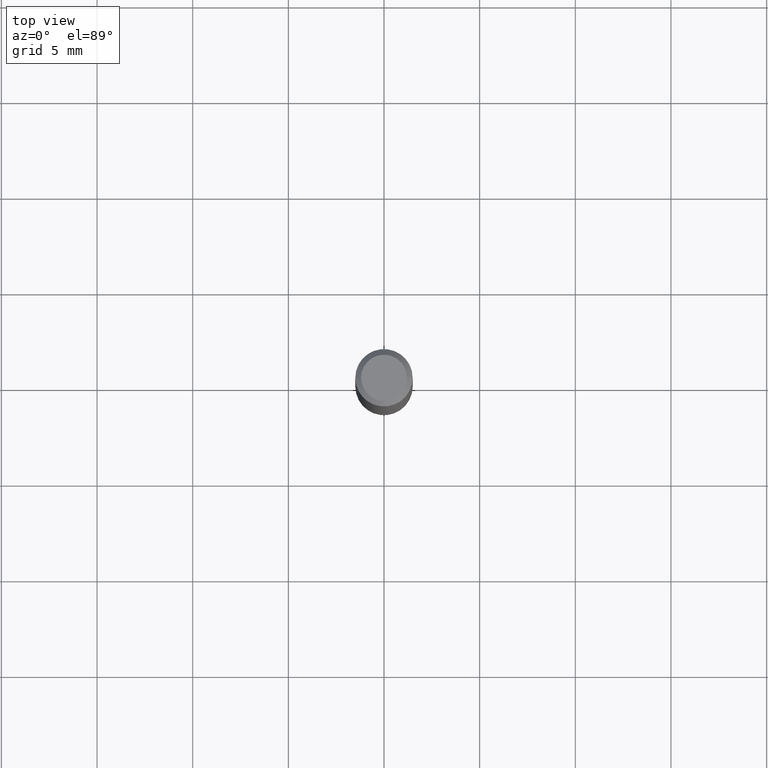
[diagram: clean part render]
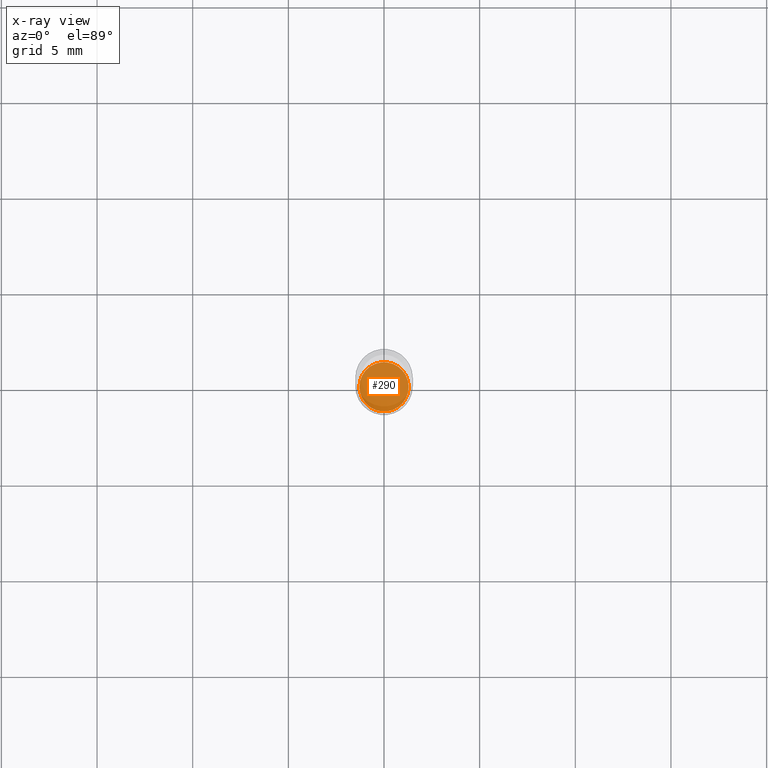
[diagram: x-ray — body ghosted, one internal face saturated and labeled with its STEP entity id]
A machine part, top view, then the same camera in x-ray: the body is ghosted and one INTERNAL B-rep face — a face not visible from any outside direction — is saturated and labeled: STEP entity #290.
In plain terms, the highlighted planar face has unit normal (-0, 0, 1).
Its self-contained STEP definition (entity closure, byte-faithful):
#23 = EDGE_LOOP ( 'NONE', ( #94, #473 ) ) ;
#26 = DIRECTION ( 'NONE',  ( 1.000000000000000000, -6.982962677686263555E-15, 0.000000000000000000 ) ) ;
#42 = VERTEX_POINT ( 'NONE', #298 ) ;
#52 = PLANE ( 'NONE',  #401 ) ;
#69 = CARTESIAN_POINT ( 'NONE',  ( -0.05070000000000000201, -3.458531931159340616E-15, -1.094500000000000028 ) ) ;
#94 = ORIENTED_EDGE ( 'NONE', *, *, #312, .F. ) ;
#117 = DIRECTION ( 'NONE',  ( -2.445468806185136597E-29, 3.491481338843145583E-15, 1.000000000000000000 ) ) ;
#137 = CARTESIAN_POINT ( 'NONE',  ( 2.676565608369632355E-29, -3.821426325363822773E-15, -1.094500000000000028 ) ) ;
#159 = CARTESIAN_POINT ( 'NONE',  ( 2.676565608369632355E-29, -3.821426325363822773E-15, -1.094500000000000028 ) ) ;
#195 = EDGE_CURVE ( 'NONE', #475, #42, #279, .T. ) ;
#200 = DIRECTION ( 'NONE',  ( 1.000000000000000000, -6.982962677686265922E-15, 4.876176775795935793E-29 ) ) ;
#240 = DIRECTION ( 'NONE',  ( 1.000000000000000000, -6.982962677686263555E-15, 0.000000000000000000 ) ) ;
#279 = CIRCLE ( 'NONE', #287, 0.05070000000000000201 ) ;
#281 = DIRECTION ( 'NONE',  ( -2.445468806185136597E-29, 3.491481338843145583E-15, 1.000000000000000000 ) ) ;
#287 = AXIS2_PLACEMENT_3D ( 'NONE', #159, #117, #240 ) ;
#290 = ADVANCED_FACE ( 'NONE', ( #434 ), #52, .F. ) ;
#298 = CARTESIAN_POINT ( 'NONE',  ( 0.05070000000000000201, -4.175462533122516319E-15, -1.094500000000000028 ) ) ;
#311 = CARTESIAN_POINT ( 'NONE',  ( 6.174816162826660585E-30, -6.770151797815041706E-15, -1.094500000000000028 ) ) ;
#312 = EDGE_CURVE ( 'NONE', #42, #475, #371, .T. ) ;
#371 = CIRCLE ( 'NONE', #448, 0.05070000000000000201 ) ;
#401 = AXIS2_PLACEMENT_3D ( 'NONE', #311, #463, #200 ) ;
#434 = FACE_OUTER_BOUND ( 'NONE', #23, .T. ) ;
#448 = AXIS2_PLACEMENT_3D ( 'NONE', #137, #281, #26 ) ;
#463 = DIRECTION ( 'NONE',  ( -2.438088387897960049E-29, 3.491481338843145188E-15, 1.000000000000000000 ) ) ;
#473 = ORIENTED_EDGE ( 'NONE', *, *, #195, .F. ) ;
#475 = VERTEX_POINT ( 'NONE', #69 ) ;